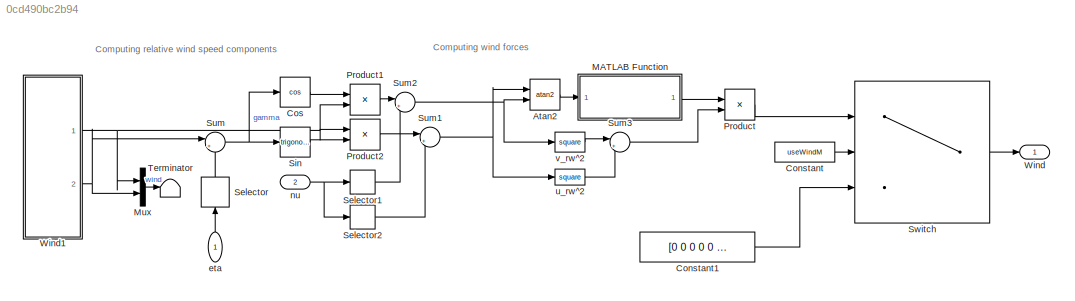
MODEL slx_0cd490bc2b94
KIND model
CONFIG AbsTol = auto
CONFIG EnableMultiTasking = off
CONFIG FixedStep = 0.1
CONFIG MaxStep = auto
CONFIG MinStep = auto
CONFIG RelTol = 1e-3
CONFIG SampleTimeConstraint = Unconstrained
CONFIG Solver = FixedStepAuto
CONFIG SolverName = FixedStepAuto
CONFIG StartTime = 0.0
CONFIG StopTime = 300
BLOCK [Trigonometry] Atan2
  Operator = atan2
  Ports = [2, 1]
BLOCK [Constant] Constant
  Value = useWindM
BLOCK [Constant] Constant1
  Value = [0 0 0 0 0 0]'
BLOCK [Trigonometry] Cos
  Operator = cos
  Ports = [1, 1]
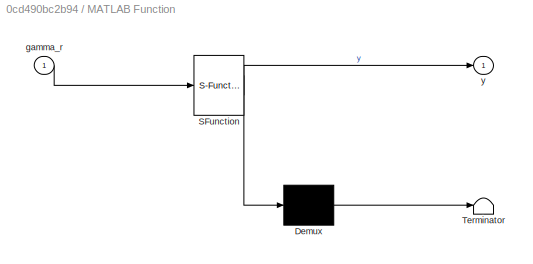
BLOCK [SubSystem] MATLAB Function
  ErrorFcn = Stateflow.Translate.translate
  PermitHierarchicalResolution = ExplicitOnly
  Ports = [1, 1]
  RequestExecContextInheritance = off
  SFBlockType = MATLAB Function
  TreatAsAtomicUnit = on
BLOCK [Demux] MATLAB Function/ Demux 
  Outputs = 1
  Ports = [1, 1]
BLOCK [S-Function] MATLAB Function/ SFunction 
  EnableBusSupport = on
  FunctionName = sf_sfun
  PortCounts = [1 2]
  Ports = [1, 2]
  SFcnIsStateOwnerBlock = off
  SFunctionDeploymentMode = off
  Tag = Stateflow S-Function wind_model 6
BLOCK [Terminator] MATLAB Function/ Terminator 
BLOCK [Inport] MATLAB Function/gamma_r
  IconDisplay = Port number
BLOCK [Outport] MATLAB Function/y
  IconDisplay = Port number
BLOCK [Mux] Mux
  DisplayOption = bar
  Inputs = 2
  Ports = [2, 1]
BLOCK [Product] Product
  InputSameDT = off
  OutDataTypeStr = Inherit: Inherit via internal rule
  Ports = [2, 1]
  RndMeth = Floor
  SaturateOnIntegerOverflow = off
BLOCK [Product] Product1
  InputSameDT = off
  OutDataTypeStr = Inherit: Inherit via internal rule
  Ports = [2, 1]
  RndMeth = Floor
  SaturateOnIntegerOverflow = off
BLOCK [Product] Product2
  InputSameDT = off
  OutDataTypeStr = Inherit: Inherit via internal rule
  Ports = [2, 1]
  RndMeth = Floor
  SaturateOnIntegerOverflow = off
BLOCK [Selector] Selector
  IndexOptions = Index vector (dialog)
  Indices = [3]
  InputPortWidth = 3
  OutputSizes = 1
  Ports = [1, 1]
BLOCK [Selector] Selector1
  IndexOptions = Index vector (dialog)
  Indices = [1]
  InputPortWidth = 3
  OutputSizes = 1
  Ports = [1, 1]
BLOCK [Selector] Selector2
  IndexOptions = Index vector (dialog)
  Indices = [2]
  InputPortWidth = 3
  OutputSizes = 1
  Ports = [1, 1]
BLOCK [Trigonometry] Sin
  Ports = [1, 1]
BLOCK [Sum] Sum
  IconShape = round
  InputSameDT = off
  Inputs = |+-
  OutDataTypeStr = Inherit: Inherit via internal rule
  Ports = [2, 1]
  SaturateOnIntegerOverflow = off
BLOCK [Sum] Sum1
  IconShape = round
  InputSameDT = off
  Inputs = |+-
  OutDataTypeStr = Inherit: Inherit via internal rule
  Ports = [2, 1]
  SaturateOnIntegerOverflow = off
BLOCK [Sum] Sum2
  IconShape = round
  InputSameDT = off
  Inputs = |+-
  OutDataTypeStr = Inherit: Inherit via internal rule
  Ports = [2, 1]
  SaturateOnIntegerOverflow = off
BLOCK [Sum] Sum3
  IconShape = round
  InputSameDT = off
  Inputs = |++
  OutDataTypeStr = Inherit: Inherit via internal rule
  Ports = [2, 1]
  SaturateOnIntegerOverflow = off
BLOCK [Switch] Switch
  Criteria = u2 ~= 0
  InputSameDT = off
  SaturateOnIntegerOverflow = off
BLOCK [Terminator] Terminator
BLOCK [Outport] Wind
  IconDisplay = Port number
  PortDimensions = 6
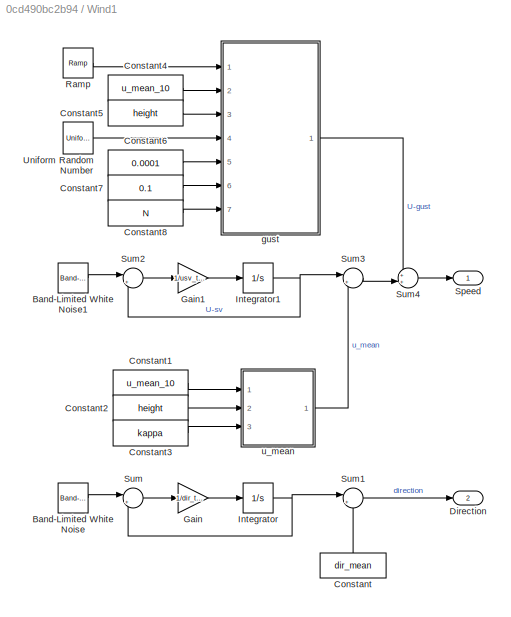
BLOCK [SubSystem] Wind1
  Ports = [0, 2]
  RequestExecContextInheritance = off
BLOCK [Reference] Wind1/Band-Limited White Noise  REF=simulink/Sources/Band-Limited
White Noise
  Ports = [0, 1]
  SourceBlock = simulink/Sources/Band-Limited\nWhite Noise
  SourceProductBaseCode = SL
  SourceProductName = Simulink
  SourceType = Band-Limited White Noise.
BLOCK [Reference] Wind1/Band-Limited White Noise1  REF=simulink/Sources/Band-Limited
White Noise
  Ports = [0, 1]
  SourceBlock = simulink/Sources/Band-Limited\nWhite Noise
  SourceProductBaseCode = SL
  SourceProductName = Simulink
  SourceType = Band-Limited White Noise.
BLOCK [Constant] Wind1/Constant
  Value = dir_mean
BLOCK [Constant] Wind1/Constant1
  Value = u_mean_10
BLOCK [Constant] Wind1/Constant2
  Value = height
BLOCK [Constant] Wind1/Constant3
  Value = kappa
BLOCK [Constant] Wind1/Constant4
  Value = u_mean_10
BLOCK [Constant] Wind1/Constant5
  Value = height
BLOCK [Constant] Wind1/Constant6
  Value = 0.0001
BLOCK [Constant] Wind1/Constant7
  Value = 0.1
BLOCK [Constant] Wind1/Constant8
  Value = N
BLOCK [Outport] Wind1/Direction
  IconDisplay = Port number
  Port = 2
BLOCK [Gain] Wind1/Gain
  Gain = 1/dir_time_constant
  OutDataTypeStr = Inherit: Inherit via internal rule
  ParamDataTypeStr = Inherit: Inherit via internal rule
  SaturateOnIntegerOverflow = off
BLOCK [Gain] Wind1/Gain1
  Gain = 1/usv_time_constant
  OutDataTypeStr = Inherit: Inherit via internal rule
  ParamDataTypeStr = Inherit: Inherit via internal rule
  SaturateOnIntegerOverflow = off
BLOCK [Integrator] Wind1/Integrator
  LimitOutput = on
  LowerSaturationLimit = -dir_lim
  Ports = [1, 1]
  UpperSaturationLimit = dir_lim
BLOCK [Integrator] Wind1/Integrator1
  LimitOutput = on
  LowerSaturationLimit = -usv_lim
  Ports = [1, 1]
  UpperSaturationLimit = usv_lim
BLOCK [Reference] Wind1/Ramp  REF=simulink/Sources/Ramp
  Ports = [0, 1]
  SourceBlock = simulink/Sources/Ramp
  SourceProductBaseCode = SL
  SourceProductName = Simulink
  SourceType = Ramp
BLOCK [Outport] Wind1/Speed
  IconDisplay = Port number
BLOCK [Sum] Wind1/Sum
  IconShape = round
  InputSameDT = off
  Inputs = |+-
  OutDataTypeStr = Inherit: Inherit via internal rule
  Ports = [2, 1]
  SaturateOnIntegerOverflow = off
BLOCK [Sum] Wind1/Sum1
  IconShape = round
  InputSameDT = off
  Inputs = |++
  OutDataTypeStr = Inherit: Inherit via internal rule
  Ports = [2, 1]
  SaturateOnIntegerOverflow = off
BLOCK [Sum] Wind1/Sum2
  IconShape = round
  InputSameDT = off
  Inputs = |+-
  OutDataTypeStr = Inherit: Inherit via internal rule
  Ports = [2, 1]
  SaturateOnIntegerOverflow = off
BLOCK [Sum] Wind1/Sum3
  IconShape = round
  InputSameDT = off
  Inputs = |++
  OutDataTypeStr = Inherit: Inherit via internal rule
  Ports = [2, 1]
  SaturateOnIntegerOverflow = off
BLOCK [Sum] Wind1/Sum4
  IconShape = round
  InputSameDT = off
  Inputs = ++|
  OutDataTypeStr = Inherit: Inherit via internal rule
  Ports = [2, 1]
  SaturateOnIntegerOverflow = off
BLOCK [UniformRandomNumber] Wind1/Uniform Random Number
  Maximum = pi*ones(N,1)
  Minimum = -pi*ones(N,1)
  SampleTime = 1e5
  Seed = double(uint32(121010101*rand(N,1)))
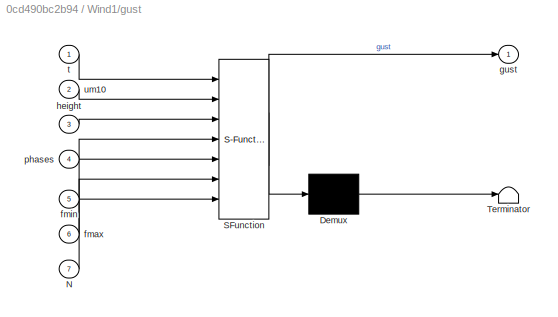
BLOCK [SubSystem] Wind1/gust
  ErrorFcn = Stateflow.Translate.translate
  PermitHierarchicalResolution = ExplicitOnly
  Ports = [7, 1]
  RequestExecContextInheritance = off
  SFBlockType = MATLAB Function
  TreatAsAtomicUnit = on
BLOCK [Demux] Wind1/gust/ Demux 
  Outputs = 1
  Ports = [1, 1]
BLOCK [S-Function] Wind1/gust/ SFunction 
  EnableBusSupport = on
  FunctionName = sf_sfun
  PortCounts = [7 2]
  Ports = [7, 2]
  SFcnIsStateOwnerBlock = off
  SFunctionDeploymentMode = off
  Tag = Stateflow S-Function wind_model 1
BLOCK [Terminator] Wind1/gust/ Terminator 
BLOCK [Inport] Wind1/gust/N
  IconDisplay = Port number
  Port = 7
BLOCK [Inport] Wind1/gust/fmax
  IconDisplay = Port number
  Port = 6
BLOCK [Inport] Wind1/gust/fmin
  IconDisplay = Port number
  Port = 5
BLOCK [Outport] Wind1/gust/gust
  IconDisplay = Port number
BLOCK [Inport] Wind1/gust/height
  IconDisplay = Port number
  Port = 3
BLOCK [Inport] Wind1/gust/phases
  IconDisplay = Port number
  Port = 4
BLOCK [Inport] Wind1/gust/t
  IconDisplay = Port number
BLOCK [Inport] Wind1/gust/um10
  IconDisplay = Port number
  Port = 2
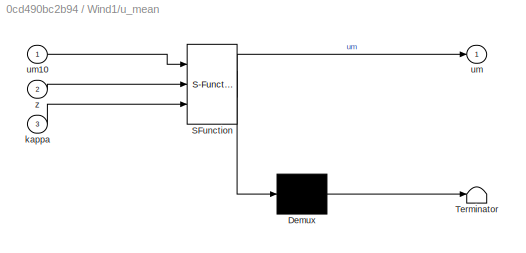
BLOCK [SubSystem] Wind1/u_mean
  ErrorFcn = Stateflow.Translate.translate
  PermitHierarchicalResolution = ExplicitOnly
  Ports = [3, 1]
  RequestExecContextInheritance = off
  SFBlockType = MATLAB Function
  TreatAsAtomicUnit = on
BLOCK [Demux] Wind1/u_mean/ Demux 
  Outputs = 1
  Ports = [1, 1]
BLOCK [S-Function] Wind1/u_mean/ SFunction 
  EnableBusSupport = on
  FunctionName = sf_sfun
  PortCounts = [3 2]
  Ports = [3, 2]
  SFcnIsStateOwnerBlock = off
  SFunctionDeploymentMode = off
  Tag = Stateflow S-Function wind_model 2
BLOCK [Terminator] Wind1/u_mean/ Terminator 
BLOCK [Inport] Wind1/u_mean/kappa
  IconDisplay = Port number
  Port = 3
BLOCK [Outport] Wind1/u_mean/um
  IconDisplay = Port number
BLOCK [Inport] Wind1/u_mean/um10
  IconDisplay = Port number
BLOCK [Inport] Wind1/u_mean/z
  IconDisplay = Port number
  Port = 2
BLOCK [Inport] eta
  IconDisplay = Port number
  PortDimensions = 3
BLOCK [Inport] nu
  IconDisplay = Port number
  Port = 2
  PortDimensions = 3
BLOCK [Math] u_rw^2
  Operator = square
  Ports = [1, 1]
BLOCK [Math] v_rw^2
  Operator = square
  Ports = [1, 1]
ANNOTATION (root): Computing relative wind speed components
ANNOTATION (root): Computing wind forces
LINE Atan2:1 -> MATLAB Function:1
LINE Constant1:1 -> Switch:3
LINE Constant:1 -> Switch:2
LINE Cos:1 -> Product1:1
LINE MATLAB Function:1 -> Product:1
LINE Mux:1 -> Terminator:1
LINE Product1:1 -> Sum2:1
LINE Product2:1 -> Sum1:1
LINE Product:1 -> Switch:1
LINE Selector1:1 -> Sum2:2
LINE Selector2:1 -> Sum1:2
LINE Selector:1 -> Sum:2
LINE Sin:1 -> Product2:2
NET Sum1:1 -> Atan2:1, u_rw^2:1
NET Sum2:1 -> Atan2:2, v_rw^2:1
LINE Sum3:1 -> Product:2
NET Sum:1 -> Cos:1, Sin:1
LINE Switch:1 -> Wind:1
LINE Wind1/Band-Limited White Noise1:1 -> Wind1/Sum2:1
LINE Wind1/Band-Limited White Noise:1 -> Wind1/Sum:1
LINE Wind1/Constant1:1 -> Wind1/u_mean:1
LINE Wind1/Constant2:1 -> Wind1/u_mean:2
LINE Wind1/Constant3:1 -> Wind1/u_mean:3
LINE Wind1/Constant4:1 -> Wind1/gust:2
LINE Wind1/Constant5:1 -> Wind1/gust:3
LINE Wind1/Constant6:1 -> Wind1/gust:5
LINE Wind1/Constant7:1 -> Wind1/gust:6
LINE Wind1/Constant8:1 -> Wind1/gust:7
LINE Wind1/Constant:1 -> Wind1/Sum1:2
LINE Wind1/Gain1:1 -> Wind1/Integrator1:1
LINE Wind1/Gain:1 -> Wind1/Integrator:1
NET Wind1/Integrator1:1 -> Wind1/Sum2:2, Wind1/Sum3:1
NET Wind1/Integrator:1 -> Wind1/Sum1:1, Wind1/Sum:2
LINE Wind1/Ramp:1 -> Wind1/gust:1
LINE Wind1/Sum1:1 -> Wind1/Direction:1
LINE Wind1/Sum2:1 -> Wind1/Gain1:1
LINE Wind1/Sum3:1 -> Wind1/Sum4:2
LINE Wind1/Sum4:1 -> Wind1/Speed:1
LINE Wind1/Sum:1 -> Wind1/Gain:1
LINE Wind1/Uniform Random Number:1 -> Wind1/gust:4
LINE Wind1/gust:1 -> Wind1/Sum4:1
LINE Wind1/u_mean:1 -> Wind1/Sum3:2
NET Wind1:1 -> Mux:1, Product1:2, Product2:1
NET Wind1:2 -> Mux:2, Sum:1
LINE eta:1 -> Selector:1
NET nu:1 -> Selector1:1, Selector2:1
LINE u_rw^2:1 -> Sum3:2
LINE v_rw^2:1 -> Sum3:1
note: NET lines group one-source signal fan-out (src -> all destinations, sorted); 1:1 wires keep LINE
CHART Wind1/gust states=1 transitions=1
  STATE_LABEL 'eML_blk_kernel()'
  STATE_LABEL "SCRIPT:\nfunction gust  = fcn(t, um10, height, phases, fmin, fmax, N)\n\n% linearly spaced components\nfreqs = linspace(fmin,fmax,N)';\ndf = freqs(2) - freqs(1);\n\nx = zeros(N,1);\n\n% Norsok spectrum\nn = 0.468;\nx = 172*freqs*(height/10)^(2/3) * (um10/10)^(-3/4);\nx = x.^n;\nx = (1+x).^(5/(3*n));\nSf = (320*(um10/10)^2*(height/10)^0.45)./x;\n\n% wind component amplitudes\n% amps = zeros(1, N);\n% for i = 1:N\n%  ...<+353ch>"
CHART Wind1/u_mean states=1 transitions=1
  STATE_LABEL 'eML_blk_kernel()'
  STATE_LABEL 'SCRIPT:\nfunction um = fcn(um10, z, kappa)\num = 0;\nz0 = 10*exp(-2/(5*sqrt(kappa)));\num = um10*5*sqrt(kappa)*log(z/z0)/2;\n'
CHART MATLAB Function states=1 transitions=1
  STATE_LABEL 'eML_blk_kernel()'
  STATE_LABEL "SCRIPT:\nfunction y = fcn(gamma_r)\n\ncoder.extrinsic('round')\n\nCN_data = [\n  0  248.3700 0 0 0 -2355.232759 0\n 10  265.1900 61.332 0 275.994 -2514.732759 551.1\n 20  224.1300 136.22 0 612.99 -2125.37069 661.56\n 30  149.0300 238.76 0 1074.42 -1413.215517 451.37\n 40  134.3600 319.42 0 1437.39 -1274.103448 212.51\n 50   96.8000 380.5 0 1712.25 -917.9310345 -23.578\n 60   41.3640 396.1 0 1782.45 -392.24482...<+1925ch>"
